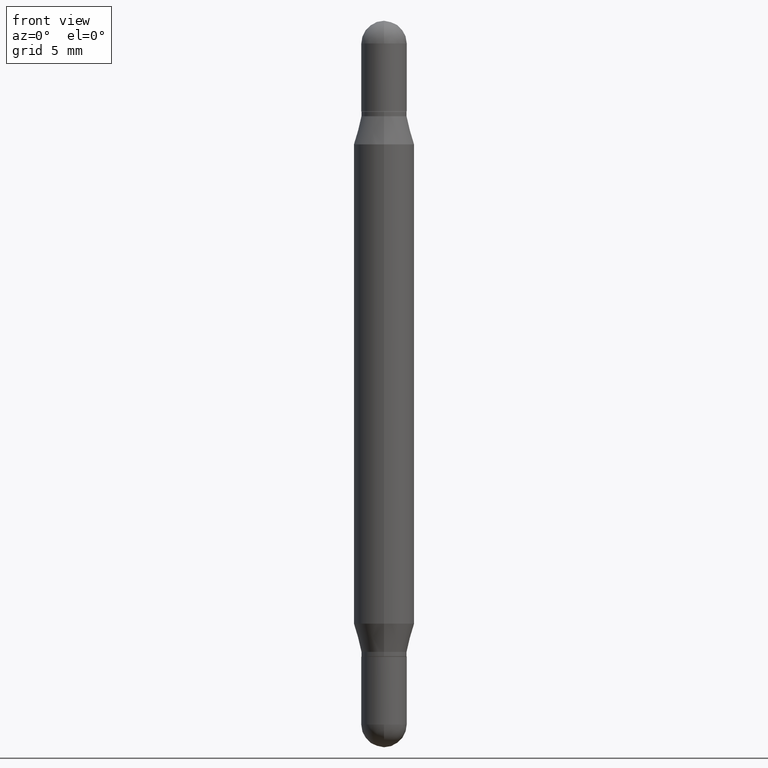
[diagram: clean part render]
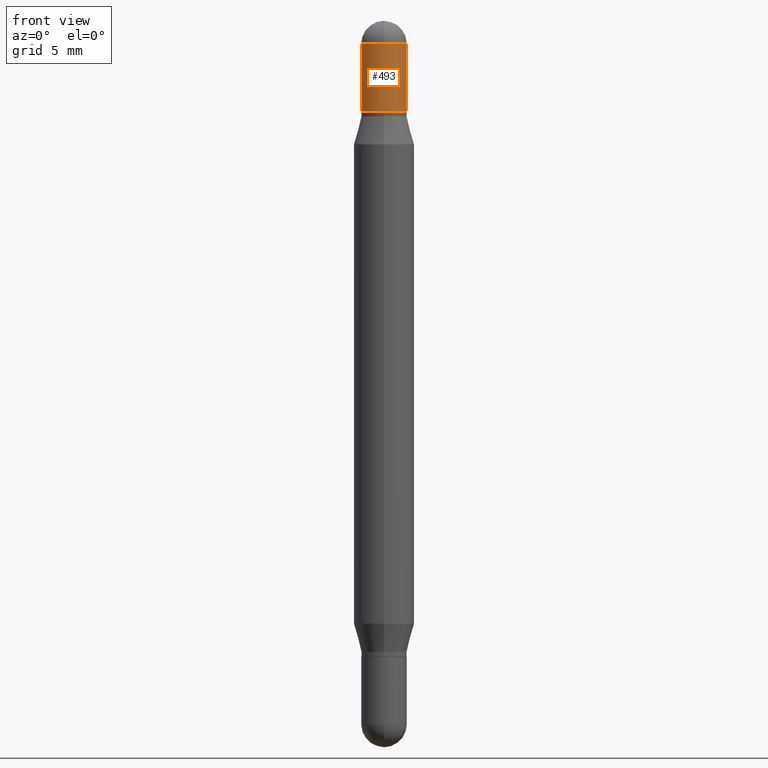
[diagram: same view with one face highlighted and labeled with its STEP entity id]
A machine part, front view. The second image highlights one B-rep face of the part: STEP entity #493.
In plain terms, the highlighted cylindrical surface (edge-blend (fillet) strip) has radius 1.1913 mm, axis along (-0, -0, -1).
Its self-contained STEP definition (entity closure, byte-faithful):
#43 = AXIS2_PLACEMENT_3D ( 'NONE', #1093, #1107, #256 ) ;
#80 = VERTEX_POINT ( 'NONE', #235 ) ;
#101 = EDGE_CURVE ( 'NONE', #194, #1110, #1007, .T. ) ;
#113 = CARTESIAN_POINT ( 'NONE',  ( 3.553510722267622201E-29, -1.720940724002502970E-16, -0.04690000000000053154 ) ) ;
#146 = DIRECTION ( 'NONE',  ( -2.445468806185136597E-29, -3.479614466977828254E-15, -1.000000000000000000 ) ) ;
#154 = DIRECTION ( 'NONE',  ( -2.445468806185136877E-29, -3.479614466977828648E-15, -1.000000000000000000 ) ) ;
#175 = CARTESIAN_POINT ( 'NONE',  ( 0.000000000000000000, -5.228321854365732350E-15, -1.500000000000000444 ) ) ;
#194 = VERTEX_POINT ( 'NONE', #877 ) ;
#204 = ORIENTED_EDGE ( 'NONE', *, *, #1047, .F. ) ;
#235 = CARTESIAN_POINT ( 'NONE',  ( -0.04689999999999999725, -9.408370971656128076E-17, -0.04690000000000053154 ) ) ;
#256 = DIRECTION ( 'NONE',  ( 1.000000000000000000, -6.982962677686266711E-15, 0.000000000000000000 ) ) ;
#261 = DIRECTION ( 'NONE',  ( 2.445468806185136597E-29, 3.479614466977828254E-15, 1.000000000000000000 ) ) ;
#264 = ORIENTED_EDGE ( 'NONE', *, *, #566, .F. ) ;
#275 = VERTEX_POINT ( 'NONE', #791 ) ;
#290 = LINE ( 'NONE', #983, #584 ) ;
#318 = CYLINDRICAL_SURFACE ( 'NONE', #886, 0.04689999999999999725 ) ;
#329 = CARTESIAN_POINT ( 'NONE',  ( 3.210900542521084585E-29, -6.595880592238425060E-16, -0.1870000000000002216 ) ) ;
#337 = FACE_OUTER_BOUND ( 'NONE', #771, .T. ) ;
#404 = DIRECTION ( 'NONE',  ( 1.000000000000000000, -6.982962677686266711E-15, 0.000000000000000000 ) ) ;
#459 = DIRECTION ( 'NONE',  ( 2.445468806185136597E-29, 3.479614466977828254E-15, 1.000000000000000000 ) ) ;
#490 = VERTEX_POINT ( 'NONE', #812 ) ;
#493 = ADVANCED_FACE ( 'NONE', ( #337 ), #318, .T. ) ;
#513 = CARTESIAN_POINT ( 'NONE',  ( 0.04689999999999999725, -5.555822803949218252E-15, -1.500000000000000444 ) ) ;
#525 = EDGE_CURVE ( 'NONE', #490, #1110, #977, .T. ) ;
#547 = DIRECTION ( 'NONE',  ( -2.445468806185136877E-29, -3.479614466977828648E-15, -1.000000000000000000 ) ) ;
#551 = ORIENTED_EDGE ( 'NONE', *, *, #525, .T. ) ;
#562 = VECTOR ( 'NONE', #154, 39.37007874015748143 ) ;
#566 = EDGE_CURVE ( 'NONE', #275, #194, #720, .T. ) ;
#584 = VECTOR ( 'NONE', #547, 39.37007874015748143 ) ;
#588 = CARTESIAN_POINT ( 'NONE',  ( 0.04689999999999999725, -9.870890088073285070E-16, -0.1870000000000002216 ) ) ;
#645 = ORIENTED_EDGE ( 'NONE', *, *, #101, .F. ) ;
#720 = CIRCLE ( 'NONE', #43, 0.04689999999999999725 ) ;
#729 = CIRCLE ( 'NONE', #811, 0.04689999999999999725 ) ;
#765 = ORIENTED_EDGE ( 'NONE', *, *, #937, .T. ) ;
#771 = EDGE_LOOP ( 'NONE', ( #204, #765, #551, #645, #264 ) ) ;
#780 = AXIS2_PLACEMENT_3D ( 'NONE', #329, #261, #404 ) ;
#791 = CARTESIAN_POINT ( 'NONE',  ( -3.275009495834508474E-16, -0.04690000000000024011, -0.04690000000000036501 ) ) ;
#801 = DIRECTION ( 'NONE',  ( 1.000000000000000000, -6.982962677686266711E-15, 0.000000000000000000 ) ) ;
#811 = AXIS2_PLACEMENT_3D ( 'NONE', #113, #459, #801 ) ;
#812 = CARTESIAN_POINT ( 'NONE',  ( -0.04689999999999999725, -9.408370971656158891E-17, -0.1870000000000002216 ) ) ;
#877 = CARTESIAN_POINT ( 'NONE',  ( 0.04689999999999999725, -7.433420153955320943E-16, -0.04690000000000053154 ) ) ;
#886 = AXIS2_PLACEMENT_3D ( 'NONE', #175, #146, #1114 ) ;
#937 = EDGE_CURVE ( 'NONE', #80, #490, #290, .T. ) ;
#977 = CIRCLE ( 'NONE', #780, 0.04689999999999999725 ) ;
#983 = CARTESIAN_POINT ( 'NONE',  ( -0.04689999999999999725, -4.906564498270247118E-15, -1.500000000000000444 ) ) ;
#1007 = LINE ( 'NONE', #513, #562 ) ;
#1047 = EDGE_CURVE ( 'NONE', #80, #275, #729, .T. ) ;
#1093 = CARTESIAN_POINT ( 'NONE',  ( 3.553510722267622201E-29, -1.720940724002502970E-16, -0.04690000000000053154 ) ) ;
#1107 = DIRECTION ( 'NONE',  ( 2.445468806185136597E-29, 3.479614466977828254E-15, 1.000000000000000000 ) ) ;
#1110 = VERTEX_POINT ( 'NONE', #588 ) ;
#1114 = DIRECTION ( 'NONE',  ( 1.000000000000000000, -6.982962677686277755E-15, 0.000000000000000000 ) ) ;